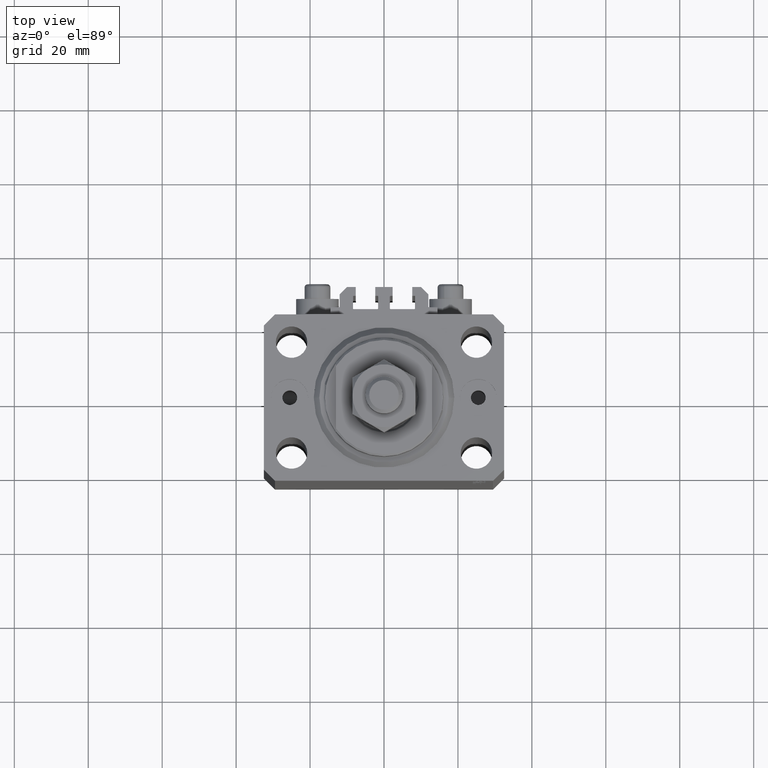
[diagram: clean part render]
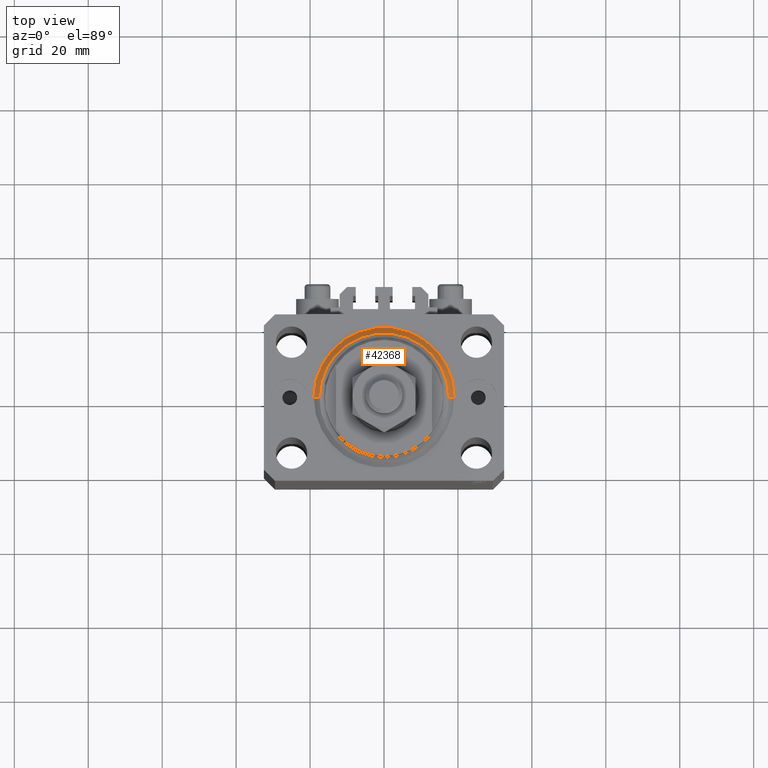
[diagram: same view with one face highlighted and labeled with its STEP entity id]
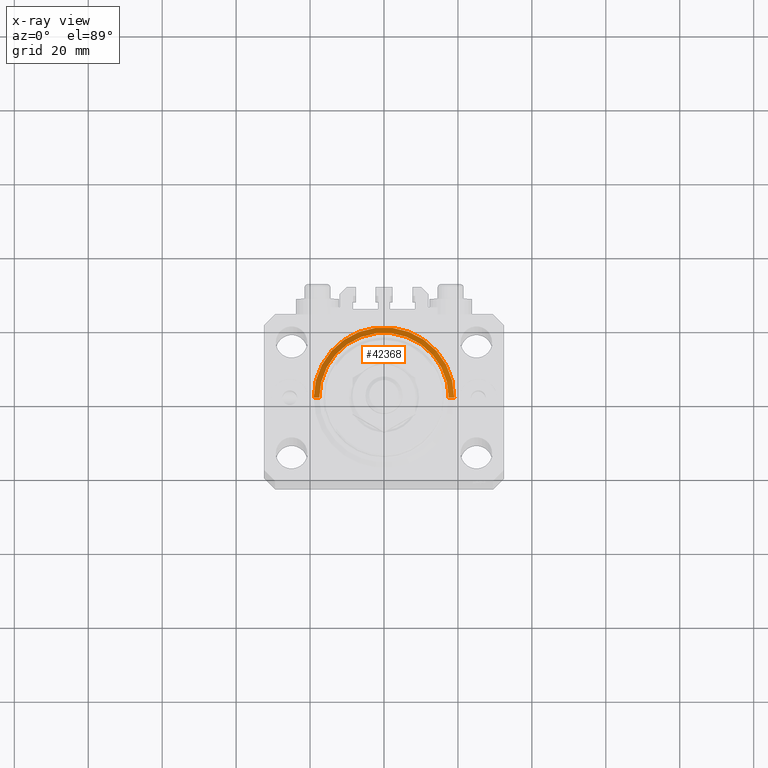
[diagram: x-ray of the same camera — body ghosted, the highlighted face saturated]
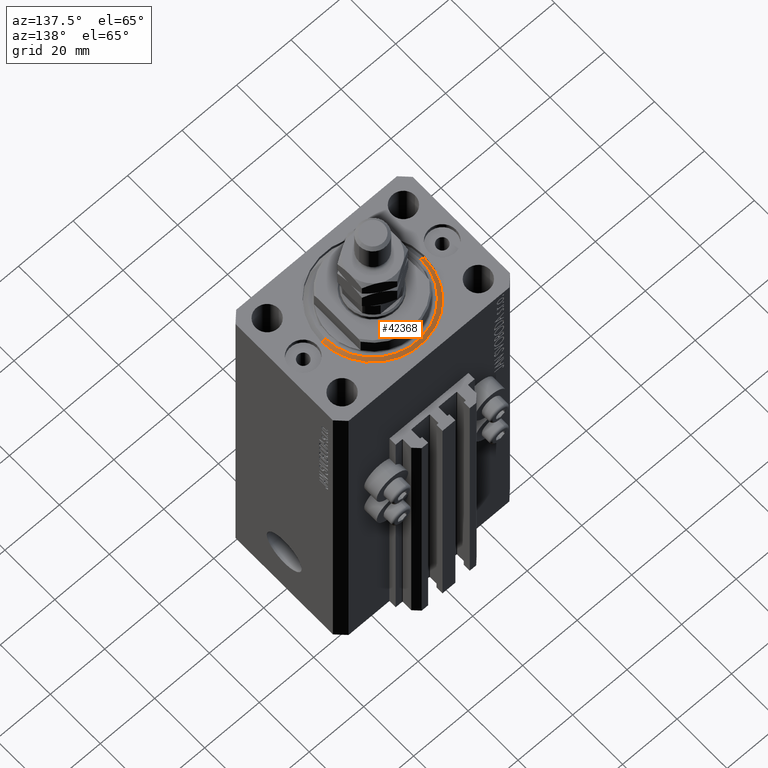
[diagram: same view with one face highlighted and labeled with its STEP entity id]
A machine part, top view. The second image highlights one B-rep face of the part: STEP entity #42368.
The next image is the same camera in x-ray: the body ghosted, the highlighted face saturated — about 0% of this face is hidden behind the body in this view.
A second angle (auxiliary view) of the same face is appended — the face is thin or edge-on in the first view.
In plain terms, the highlighted conical surface has half-angle 45 deg.
Its self-contained STEP definition (entity closure, byte-faithful):
#4231 = ORIENTED_EDGE ( 'NONE', *, *, #27194, .F. ) ;
#5080 = CARTESIAN_POINT ( 'NONE',  ( 19.00000000000000000, 0.000000000000000000, 1.500000000000001332 ) ) ;
#6785 = CONICAL_SURFACE ( 'NONE', #9155, 19.00000000000000000, 0.7853981633974492782 ) ;
#7507 = VERTEX_POINT ( 'NONE', #19595 ) ;
#9155 = AXIS2_PLACEMENT_3D ( 'NONE', #26765, #15664, #30708 ) ;
#10543 = LINE ( 'NONE', #17945, #38495 ) ;
#10602 = VERTEX_POINT ( 'NONE', #16671 ) ;
#11403 = DIRECTION ( 'NONE',  ( 1.000000000000000000, 0.000000000000000000, 0.000000000000000000 ) ) ;
#14678 = CIRCLE ( 'NONE', #46192, 17.49999999999999645 ) ;
#15419 = FACE_OUTER_BOUND ( 'NONE', #38038, .T. ) ;
#15664 = DIRECTION ( 'NONE',  ( -0.000000000000000000, -0.000000000000000000, 1.000000000000000000 ) ) ;
#16671 = CARTESIAN_POINT ( 'NONE',  ( -19.00000000000000000, 0.000000000000000000, 1.500000000000001332 ) ) ;
#16701 = EDGE_CURVE ( 'NONE', #7507, #10602, #27933, .T. ) ;
#17945 = CARTESIAN_POINT ( 'NONE',  ( -19.00000000000000000, 2.326828918379970970E-15, 1.500000000000001332 ) ) ;
#18298 = CARTESIAN_POINT ( 'NONE',  ( -17.49999999999999645, 2.234980408443919215E-15, 0.000000000000000000 ) ) ;
#18420 = DIRECTION ( 'NONE',  ( -0.7071067811865483499, 8.659560562354942719E-17, 0.7071067811865467956 ) ) ;
#19595 = CARTESIAN_POINT ( 'NONE',  ( 19.00000000000000000, 2.326828918379970970E-15, 1.500000000000001332 ) ) ;
#22981 = DIRECTION ( 'NONE',  ( -0.000000000000000000, -0.000000000000000000, 1.000000000000000000 ) ) ;
#25420 = VERTEX_POINT ( 'NONE', #18298 ) ;
#26765 = CARTESIAN_POINT ( 'NONE',  ( 0.000000000000000000, 0.000000000000000000, 1.500000000000001332 ) ) ;
#26930 = CARTESIAN_POINT ( 'NONE',  ( 0.000000000000000000, 0.000000000000000000, 1.500000000000001332 ) ) ;
#27194 = EDGE_CURVE ( 'NONE', #25420, #41262, #14678, .T. ) ;
#27758 = LINE ( 'NONE', #5080, #32633 ) ;
#27933 = CIRCLE ( 'NONE', #31883, 19.00000000000000000 ) ;
#28648 = CARTESIAN_POINT ( 'NONE',  ( 0.000000000000000000, 0.000000000000000000, 0.000000000000000000 ) ) ;
#30708 = DIRECTION ( 'NONE',  ( 1.000000000000000000, 0.000000000000000000, 0.000000000000000000 ) ) ;
#31860 = CARTESIAN_POINT ( 'NONE',  ( 17.49999999999999645, 0.000000000000000000, 0.000000000000000000 ) ) ;
#31883 = AXIS2_PLACEMENT_3D ( 'NONE', #26930, #22981, #11403 ) ;
#31955 = DIRECTION ( 'NONE',  ( 0.7071067811865483499, 0.000000000000000000, 0.7071067811865467956 ) ) ;
#32633 = VECTOR ( 'NONE', #31955, 1000.000000000000000 ) ;
#33294 = EDGE_CURVE ( 'NONE', #41262, #7507, #27758, .T. ) ;
#35106 = ORIENTED_EDGE ( 'NONE', *, *, #16701, .F. ) ;
#38038 = EDGE_LOOP ( 'NONE', ( #4231, #43966, #35106, #38317 ) ) ;
#38317 = ORIENTED_EDGE ( 'NONE', *, *, #33294, .F. ) ;
#38495 = VECTOR ( 'NONE', #18420, 1000.000000000000000 ) ;
#39980 = DIRECTION ( 'NONE',  ( 1.000000000000000000, 0.000000000000000000, 0.000000000000000000 ) ) ;
#41262 = VERTEX_POINT ( 'NONE', #31860 ) ;
#42368 = ADVANCED_FACE ( 'NONE', ( #15419 ), #6785, .T. ) ;
#43966 = ORIENTED_EDGE ( 'NONE', *, *, #48533, .T. ) ;
#44173 = DIRECTION ( 'NONE',  ( -0.000000000000000000, -0.000000000000000000, -1.000000000000000000 ) ) ;
#46192 = AXIS2_PLACEMENT_3D ( 'NONE', #28648, #44173, #39980 ) ;
#48533 = EDGE_CURVE ( 'NONE', #25420, #10602, #10543, .T. ) ;